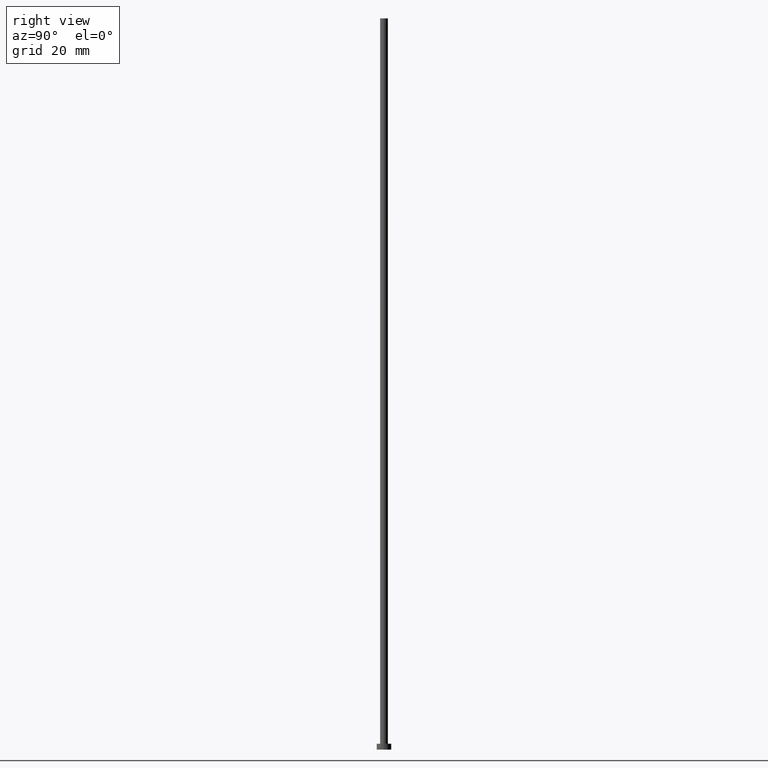
[diagram: clean part render]
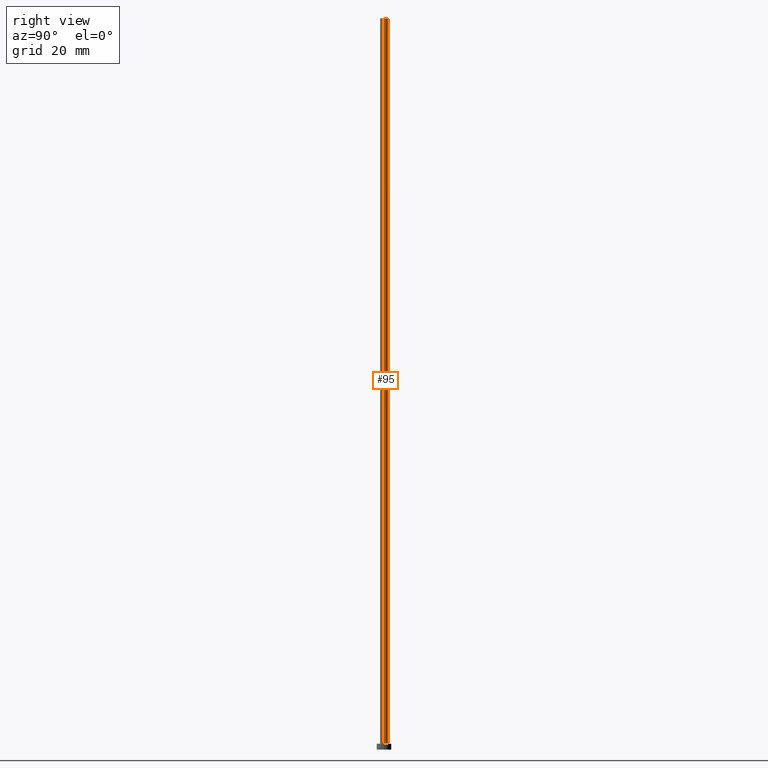
[diagram: same view with one face highlighted and labeled with its STEP entity id]
A machine part, right view. The second image highlights one B-rep face of the part: STEP entity #95.
In plain terms, the highlighted cylindrical surface (edge-blend (fillet) strip) has radius 1.35 mm, axis along (-0, -0, -1).
Its self-contained STEP definition (entity closure, byte-faithful):
#10 = CARTESIAN_POINT ( 'NONE',  ( 0.000000000000000000, 0.000000000000000000, 250.0000000000000000 ) ) ;
#17 = VECTOR ( 'NONE', #90, 1000.000000000000000 ) ;
#30 = AXIS2_PLACEMENT_3D ( 'NONE', #218, #50, #35 ) ;
#35 = DIRECTION ( 'NONE',  ( -1.000000000000000000, 0.000000000000000000, 0.000000000000000000 ) ) ;
#37 = CIRCLE ( 'NONE', #97, 1.350000000000000089 ) ;
#44 = EDGE_CURVE ( 'NONE', #84, #232, #37, .T. ) ;
#50 = DIRECTION ( 'NONE',  ( -0.000000000000000000, -0.000000000000000000, -1.000000000000000000 ) ) ;
#51 = CIRCLE ( 'NONE', #82, 1.350000000000000089 ) ;
#52 = ORIENTED_EDGE ( 'NONE', *, *, #44, .T. ) ;
#67 = LINE ( 'NONE', #213, #17 ) ;
#69 = VERTEX_POINT ( 'NONE', #217 ) ;
#71 = VERTEX_POINT ( 'NONE', #73 ) ;
#73 = CARTESIAN_POINT ( 'NONE',  ( -1.350000000000000089, 0.000000000000000000, 250.0000000000000000 ) ) ;
#82 = AXIS2_PLACEMENT_3D ( 'NONE', #10, #169, #153 ) ;
#84 = VERTEX_POINT ( 'NONE', #133 ) ;
#85 = DIRECTION ( 'NONE',  ( -0.000000000000000000, -0.000000000000000000, -1.000000000000000000 ) ) ;
#90 = DIRECTION ( 'NONE',  ( -0.000000000000000000, -0.000000000000000000, -1.000000000000000000 ) ) ;
#92 = CARTESIAN_POINT ( 'NONE',  ( 0.000000000000000000, 0.000000000000000000, 2.000000000000000000 ) ) ;
#93 = DIRECTION ( 'NONE',  ( 0.000000000000000000, 0.000000000000000000, 1.000000000000000000 ) ) ;
#95 = ADVANCED_FACE ( 'NONE', ( #235 ), #238, .T. ) ;
#97 = AXIS2_PLACEMENT_3D ( 'NONE', #92, #93, #156 ) ;
#103 = CARTESIAN_POINT ( 'NONE',  ( -1.350000000000000089, 0.000000000000000000, 2.000000000000000000 ) ) ;
#113 = ORIENTED_EDGE ( 'NONE', *, *, #167, .T. ) ;
#133 = CARTESIAN_POINT ( 'NONE',  ( 1.350000000000000089, 1.653273178848926867E-16, 2.000000000000000000 ) ) ;
#137 = ORIENTED_EDGE ( 'NONE', *, *, #196, .F. ) ;
#150 = LINE ( 'NONE', #209, #163 ) ;
#153 = DIRECTION ( 'NONE',  ( 1.000000000000000000, 0.000000000000000000, 0.000000000000000000 ) ) ;
#156 = DIRECTION ( 'NONE',  ( 1.000000000000000000, 0.000000000000000000, 0.000000000000000000 ) ) ;
#163 = VECTOR ( 'NONE', #85, 1000.000000000000000 ) ;
#167 = EDGE_CURVE ( 'NONE', #69, #84, #67, .T. ) ;
#169 = DIRECTION ( 'NONE',  ( 0.000000000000000000, 0.000000000000000000, 1.000000000000000000 ) ) ;
#177 = EDGE_LOOP ( 'NONE', ( #137, #113, #52, #211 ) ) ;
#178 = EDGE_CURVE ( 'NONE', #71, #232, #150, .T. ) ;
#196 = EDGE_CURVE ( 'NONE', #69, #71, #51, .T. ) ;
#209 = CARTESIAN_POINT ( 'NONE',  ( -1.350000000000000089, 0.000000000000000000, 250.0000000000000000 ) ) ;
#211 = ORIENTED_EDGE ( 'NONE', *, *, #178, .F. ) ;
#213 = CARTESIAN_POINT ( 'NONE',  ( 1.350000000000000089, 1.653273178848926867E-16, 250.0000000000000000 ) ) ;
#217 = CARTESIAN_POINT ( 'NONE',  ( 1.350000000000000089, 1.653273178848926867E-16, 250.0000000000000000 ) ) ;
#218 = CARTESIAN_POINT ( 'NONE',  ( 0.000000000000000000, 0.000000000000000000, 250.0000000000000000 ) ) ;
#232 = VERTEX_POINT ( 'NONE', #103 ) ;
#235 = FACE_OUTER_BOUND ( 'NONE', #177, .T. ) ;
#238 = CYLINDRICAL_SURFACE ( 'NONE', #30, 1.350000000000000089 ) ;